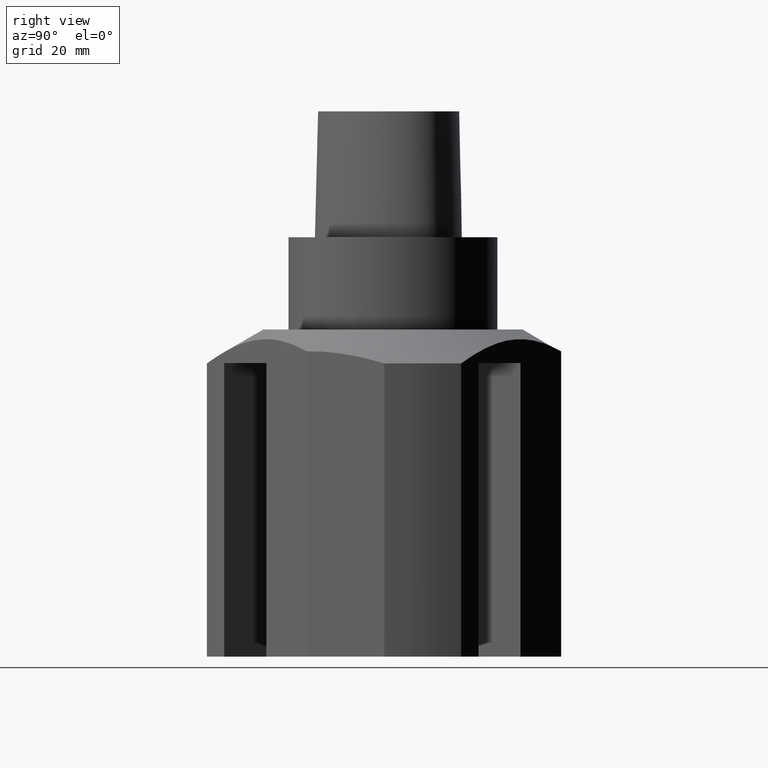
[diagram: clean part render]
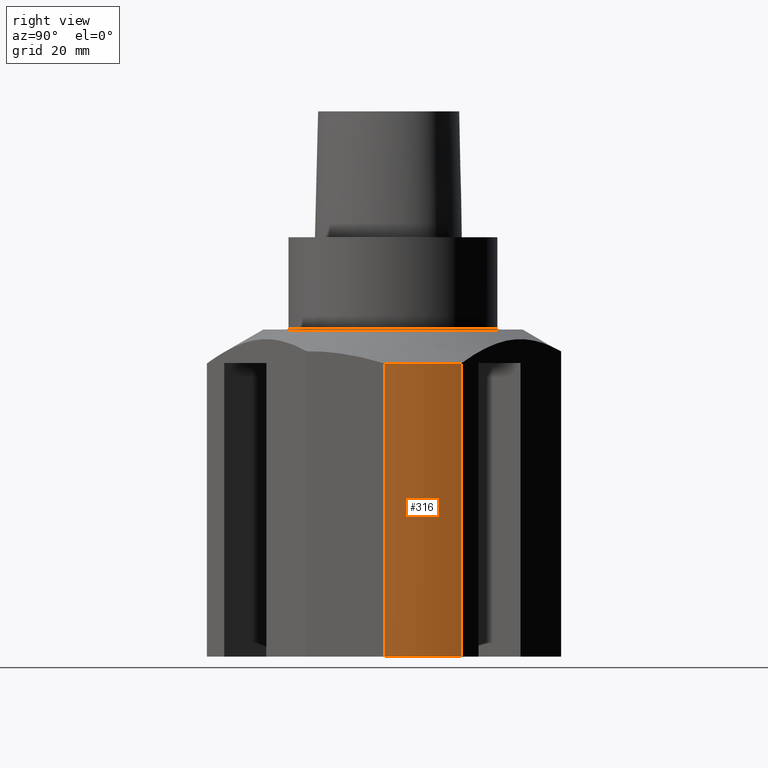
[diagram: same view with one face highlighted and labeled with its STEP entity id]
A machine part, right view. The second image highlights one B-rep face of the part: STEP entity #316.
In plain terms, the highlighted cylindrical surface (partial cylindrical patch) has radius 45 mm, axis along (-0, -0, -1).
Its self-contained STEP definition (entity closure, byte-faithful):
#153=EDGE_CURVE('240[2]',#414,#415,#416,.F.);
#185=EDGE_CURVE('240[2]',#462,#415,#463,.T.);
#241=EDGE_CURVE('240[2]',#480,#462,#540,.F.);
#261=EDGE_CURVE('240[2]',#480,#414,#564,.F.);
#316=ADVANCED_FACE('240[2]',(#627),#628,.T.);
#414=VERTEX_POINT('',#746);
#415=VERTEX_POINT('',#747);
#416=LINE('',#748,#749);
#462=VERTEX_POINT('',#883);
#463=CIRCLE('',#884,45.0);
#480=VERTEX_POINT('',#907);
#540=LINE('',#1478,#1479);
#564=CIRCLE('',#1535,45.0);
#627=FACE_OUTER_BOUND('',#1705,.T.);
#628=CYLINDRICAL_SURFACE('',#1706,45.0);
#746=CARTESIAN_POINT('',(44.9487802154215,-2.14642892864785,-99.9999999999999));
#747=CARTESIAN_POINT('',(44.9487802154216,-2.14642892864737,-30.0829021630709));
#748=CARTESIAN_POINT('',(44.9487802154215,-2.14642892864784,-63.0414510815353));
#749=VECTOR('',#1808,1.0);
#883=CARTESIAN_POINT('',(41.9948974278316,16.1687535087248,-30.0829021630708));
#884=AXIS2_PLACEMENT_3D('',#1864,#1865,#1866);
#907=CARTESIAN_POINT('',(41.9948974278316,16.1687535087247,-99.9999999999999));
#1478=CARTESIAN_POINT('',(41.9948974278316,16.1687535087248,-63.0414510815353));
#1479=VECTOR('',#1941,1.0);
#1535=AXIS2_PLACEMENT_3D('',#1966,#1967,#1968);
#1705=EDGE_LOOP('',(#2032,#2033,#2034,#2035));
#1706=AXIS2_PLACEMENT_3D('',#2036,#2037,#2038);
#1808=DIRECTION('',(-6.12323399573677E-017,-1.22464679914735E-016,-1.0));
#1864=CARTESIAN_POINT('',(-1.84204649215337E-015,0.0,-30.0829021630707));
#1865=DIRECTION('',(-6.12323399573677E-017,-1.22464679914735E-016,-1.0));
#1866=DIRECTION('',(-1.22464679914735E-016,-1.0,1.22464679914735E-016));
#1941=DIRECTION('',(-6.12323399573677E-017,-1.22464679914735E-016,-1.0));
#1966=CARTESIAN_POINT('',(-6.12323399573677E-015,-4.52611686341284E-015,-99.9999999999999));
#1967=DIRECTION('',(6.12323399573677E-017,1.22464679914735E-016,1.0));
#1968=DIRECTION('',(-1.22464679914735E-016,-1.0,1.22464679914735E-016));
#2032=ORIENTED_EDGE('',*,*,#241,.T.);
#2033=ORIENTED_EDGE('',*,*,#185,.T.);
#2034=ORIENTED_EDGE('',*,*,#153,.F.);
#2035=ORIENTED_EDGE('',*,*,#261,.F.);
#2036=CARTESIAN_POINT('',(-3.86017556403034E-015,0.0,-63.0414510815353));
#2037=DIRECTION('',(-6.12323399573677E-017,-1.22464679914735E-016,-1.0));
#2038=DIRECTION('',(-1.22464679914735E-016,-1.0,1.22464679914735E-016));